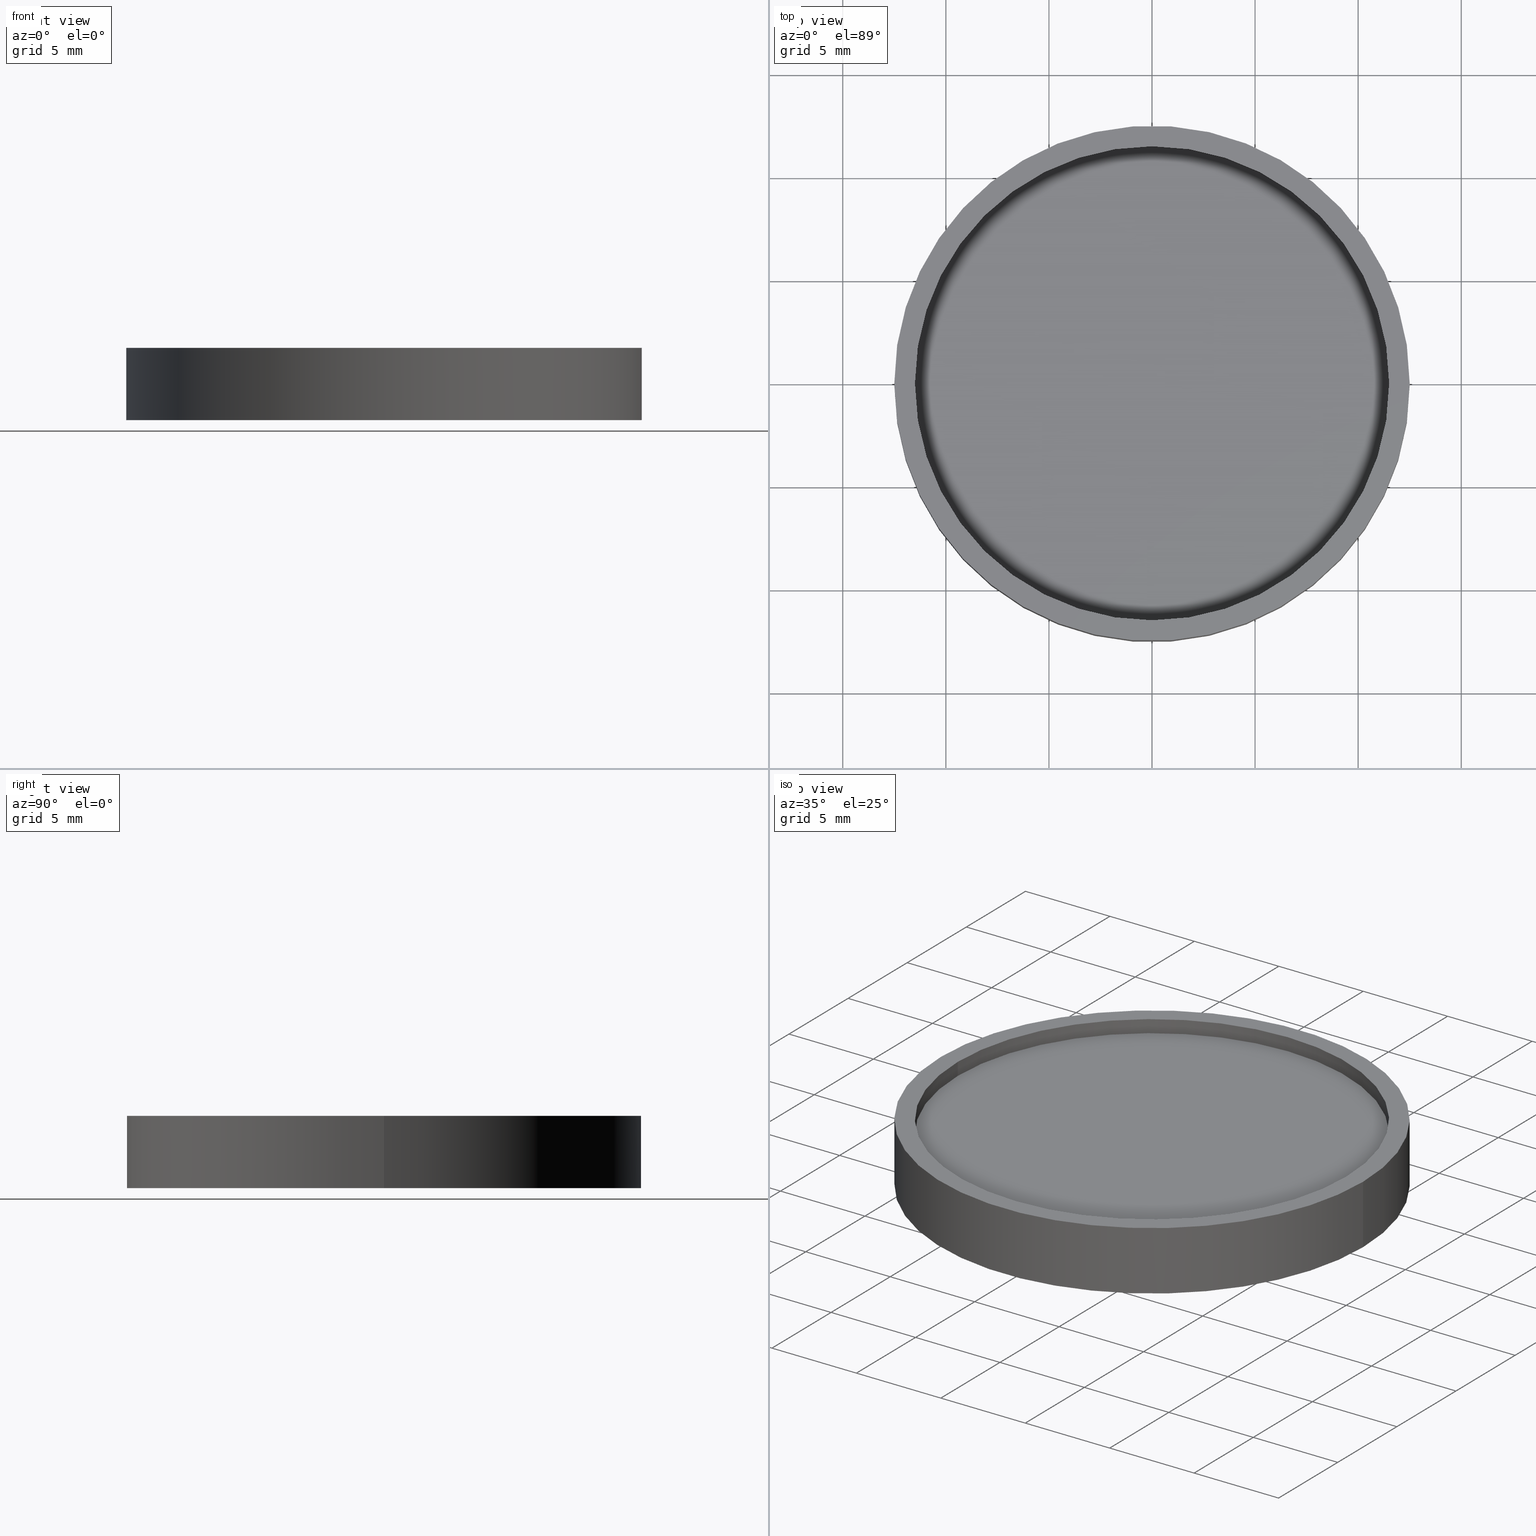
[diagram: canonical four-view strip — front | top / right | iso, engineering-drawing reading convention]
A machine part, canonical four-view strip (front | top / right | iso — engineering-drawing reading convention). The complete STEP part file that produces these views, byte-faithful:
ISO-10303-21;
HEADER;
FILE_DESCRIPTION (( 'STEP AP214' ),
    '1' );
FILE_NAME ('GNIF-065-605-D25.STEP',
    '2024-08-13T06:42:39',
    ( 'Windows User' ),
    ( 'P R C' ),
    'SwSTEP 2.0',
    'SolidWorks 2022',
    '' );
FILE_SCHEMA (( 'AUTOMOTIVE_DESIGN' ));
ENDSEC;

DATA;
#1 = SURFACE_SIDE_STYLE ('',( #387 ) ) ;
#2 = COLOUR_RGB ( '',0.2235294117647058654, 0.2235294117647058654, 0.2235294117647058654 ) ;
#3 = DIRECTION ( 'NONE',  ( -0.000000000000000000, -0.000000000000000000, -1.000000000000000000 ) ) ;
#4 = FACE_OUTER_BOUND ( 'NONE', #61, .T. ) ;
#5 = DIRECTION ( 'NONE',  ( -1.000000000000000000, 0.000000000000000000, 0.000000000000000000 ) ) ;
#6 = FILL_AREA_STYLE ('',( #37 ) ) ;
#7 = ADVANCED_BREP_SHAPE_REPRESENTATION ( 'GNIF-065-605-D25', ( #137, #70 ), #293 ) ;
#8 =( NAMED_UNIT ( * ) PLANE_ANGLE_UNIT ( ) SI_UNIT ( $, .RADIAN. ) );
#9 = UNCERTAINTY_MEASURE_WITH_UNIT (LENGTH_MEASURE( 1.000000000000000082E-05 ), #230, 'distance_accuracy_value', 'NONE');
#10 = FACE_OUTER_BOUND ( 'NONE', #189, .T. ) ;
#11 = MECHANICAL_DESIGN_GEOMETRIC_PRESENTATION_REPRESENTATION (  '', ( #197 ), #382 ) ;
#12 = DIRECTION ( 'NONE',  ( 0.000000000000000000, 0.000000000000000000, 1.000000000000000000 ) ) ;
#13 = VERTEX_POINT ( 'NONE', #147 ) ;
#14 = UNCERTAINTY_MEASURE_WITH_UNIT (LENGTH_MEASURE( 1.000000000000000082E-05 ), #385, 'distance_accuracy_value', 'NONE');
#15 = ADVANCED_FACE ( 'NONE', ( #118 ), #81, .T. ) ;
#16 = CARTESIAN_POINT ( 'NONE',  ( 0.000000000000000000, 0.000000000000000000, 0.000000000000000000 ) ) ;
#17 =( LENGTH_UNIT ( ) NAMED_UNIT ( * ) SI_UNIT ( .MILLI., .METRE. ) );
#18 = VECTOR ( 'NONE', #151, 1000.000000000000000 ) ;
#19 = FACE_OUTER_BOUND ( 'NONE', #419, .T. ) ;
#20 = LINE ( 'NONE', #152, #301 ) ;
#21 = ORIENTED_EDGE ( 'NONE', *, *, #354, .T. ) ;
#22 = SURFACE_SIDE_STYLE ('',( #55 ) ) ;
#23 = COLOUR_RGB ( '',0.2235294117647058654, 0.2235294117647058654, 0.2235294117647058654 ) ;
#24 = ORIENTED_EDGE ( 'NONE', *, *, #420, .T. ) ;
#25 = CARTESIAN_POINT ( 'NONE',  ( 0.000000000000000000, 0.000000000000000000, 2.750000000000000000 ) ) ;
#26 = VERTEX_POINT ( 'NONE', #280 ) ;
#27 = VERTEX_POINT ( 'NONE', #208 ) ;
#28 = FACE_OUTER_BOUND ( 'NONE', #220, .T. ) ;
#29 = CIRCLE ( 'NONE', #284, 12.50000000000000000 ) ;
#30 = VERTEX_POINT ( 'NONE', #242 ) ;
#31 = AXIS2_PLACEMENT_3D ( 'NONE', #392, #3, #196 ) ;
#32 = CIRCLE ( 'NONE', #241, 11.50000000000000000 ) ;
#33 = ADVANCED_FACE ( 'NONE', ( #10 ), #42, .F. ) ;
#34 = FILL_AREA_STYLE_COLOUR ( '', #391 ) ;
#35 = PRODUCT_CONTEXT ( 'NONE', #264, 'mechanical' ) ;
#36 =( GEOMETRIC_REPRESENTATION_CONTEXT ( 3 ) GLOBAL_UNCERTAINTY_ASSIGNED_CONTEXT ( ( #172 ) ) GLOBAL_UNIT_ASSIGNED_CONTEXT ( ( #205, #179, #238 ) ) REPRESENTATION_CONTEXT ( 'NONE', 'WORKASPACE' ) );
#37 = FILL_AREA_STYLE_COLOUR ( '', #50 ) ;
#38 = CIRCLE ( 'NONE', #371, 12.50000000000000000 ) ;
#39 = DIRECTION ( 'NONE',  ( 1.000000000000000000, 0.000000000000000000, 0.000000000000000000 ) ) ;
#40 = STYLED_ITEM ( 'NONE', ( #334 ), #318 ) ;
#41 = SURFACE_STYLE_FILL_AREA ( #336 ) ;
#42 = CONICAL_SURFACE ( 'NONE', #102, 11.50000000000000000, 0.7853981633974471688 ) ;
#43 = APPLICATION_PROTOCOL_DEFINITION ( 'draft international standard', 'automotive_design', 1998, #65 ) ;
#44 =( NAMED_UNIT ( * ) SI_UNIT ( $, .STERADIAN. ) SOLID_ANGLE_UNIT ( ) );
#45 = CARTESIAN_POINT ( 'NONE',  ( 0.000000000000000000, 0.000000000000000000, 2.750000000000000000 ) ) ;
#46 = EDGE_CURVE ( 'NONE', #123, #285, #210, .T. ) ;
#47 =( LENGTH_UNIT ( ) NAMED_UNIT ( * ) SI_UNIT ( .MILLI., .METRE. ) );
#48 = STYLED_ITEM ( 'NONE', ( #307 ), #7 ) ;
#49 = AXIS2_PLACEMENT_3D ( 'NONE', #124, #185, #66 ) ;
#50 = COLOUR_RGB ( '',0.2235294117647058654, 0.2235294117647058654, 0.2235294117647058654 ) ;
#51 = SURFACE_SIDE_STYLE ('',( #364 ) ) ;
#52 = DIRECTION ( 'NONE',  ( 1.000000000000000000, 0.000000000000000000, -0.000000000000000000 ) ) ;
#53 = EDGE_LOOP ( 'NONE', ( #257, #253 ) ) ;
#54 = MECHANICAL_DESIGN_GEOMETRIC_PRESENTATION_REPRESENTATION (  '', ( #236 ), #36 ) ;
#55 = SURFACE_STYLE_FILL_AREA ( #129 ) ;
#56 = ORIENTED_EDGE ( 'NONE', *, *, #278, .T. ) ;
#57 = DIRECTION ( 'NONE',  ( 0.000000000000000000, 0.000000000000000000, 1.000000000000000000 ) ) ;
#58 = FILL_AREA_STYLE_COLOUR ( '', #23 ) ;
#59 = STYLED_ITEM ( 'NONE', ( #239 ), #33 ) ;
#60 = PRODUCT ( 'GNIF-065-605-D25', 'GNIF-065-605-D25', '', ( #35 ) ) ;
#61 = EDGE_LOOP ( 'NONE', ( #357, #252, #417, #379 ) ) ;
#62 = ORIENTED_EDGE ( 'NONE', *, *, #178, .T. ) ;
#63 = FACE_OUTER_BOUND ( 'NONE', #409, .T. ) ;
#64 = ORIENTED_EDGE ( 'NONE', *, *, #76, .T. ) ;
#65 = APPLICATION_CONTEXT ( 'automotive_design' ) ;
#66 = DIRECTION ( 'NONE',  ( 1.000000000000000000, 0.000000000000000000, 0.000000000000000000 ) ) ;
#67 = SURFACE_STYLE_USAGE ( .BOTH. , #74 ) ;
#68 = CARTESIAN_POINT ( 'NONE',  ( 0.000000000000000000, 0.000000000000000000, 2.750000000000000000 ) ) ;
#69 =( NAMED_UNIT ( * ) SI_UNIT ( $, .STERADIAN. ) SOLID_ANGLE_UNIT ( ) );
#70 = AXIS2_PLACEMENT_3D ( 'NONE', #337, #331, #103 ) ;
#71 = MECHANICAL_DESIGN_GEOMETRIC_PRESENTATION_REPRESENTATION (  '', ( #120 ), #141 ) ;
#72 = COLOUR_RGB ( '',0.2235294117647058654, 0.2235294117647058654, 0.2235294117647058654 ) ;
#73 = PRODUCT_DEFINITION_SHAPE ( 'NONE', 'NONE',  #229 ) ;
#74 = SURFACE_SIDE_STYLE ('',( #299 ) ) ;
#75 = CIRCLE ( 'NONE', #314, 11.50000000000000000 ) ;
#76 = EDGE_CURVE ( 'NONE', #287, #226, #20, .T. ) ;
#77 = SURFACE_STYLE_USAGE ( .BOTH. , #305 ) ;
#78 = UNCERTAINTY_MEASURE_WITH_UNIT (LENGTH_MEASURE( 1.000000000000000082E-05 ), #88, 'distance_accuracy_value', 'NONE');
#79 = SURFACE_STYLE_USAGE ( .BOTH. , #51 ) ;
#80 = AXIS2_PLACEMENT_3D ( 'NONE', #45, #276, #52 ) ;
#81 = PLANE ( 'NONE',  #80 ) ;
#82 = CYLINDRICAL_SURFACE ( 'NONE', #396, 11.50000000000000000 ) ;
#83 = EDGE_CURVE ( 'NONE', #287, #27, #38, .T. ) ;
#84 = FACE_OUTER_BOUND ( 'NONE', #86, .T. ) ;
#85 = COLOUR_RGB ( '',0.2235294117647058654, 0.2235294117647058654, 0.2235294117647058654 ) ;
#86 = EDGE_LOOP ( 'NONE', ( #90, #374, #223, #251 ) ) ;
#87 = AXIS2_PLACEMENT_3D ( 'NONE', #347, #286, #222 ) ;
#88 =( LENGTH_UNIT ( ) NAMED_UNIT ( * ) SI_UNIT ( .MILLI., .METRE. ) );
#89 =( LENGTH_UNIT ( ) NAMED_UNIT ( * ) SI_UNIT ( .MILLI., .METRE. ) );
#90 = ORIENTED_EDGE ( 'NONE', *, *, #178, .F. ) ;
#91 = PRESENTATION_LAYER_ASSIGNMENT (  '', '', ( #197 ) ) ;
#92 = DIRECTION ( 'NONE',  ( 0.000000000000000000, 0.000000000000000000, -1.000000000000000000 ) ) ;
#93 = PLANE ( 'NONE',  #87 ) ;
#94 = ORIENTED_EDGE ( 'NONE', *, *, #354, .F. ) ;
#95 = VECTOR ( 'NONE', #341, 1000.000000000000000 ) ;
#96 = EDGE_LOOP ( 'NONE', ( #319, #381 ) ) ;
#97 = DIRECTION ( 'NONE',  ( 0.000000000000000000, 0.000000000000000000, -1.000000000000000000 ) ) ;
#98 = SURFACE_SIDE_STYLE ('',( #383 ) ) ;
#99 = ORIENTED_EDGE ( 'NONE', *, *, #213, .T. ) ;
#100 =( NAMED_UNIT ( * ) PLANE_ANGLE_UNIT ( ) SI_UNIT ( $, .RADIAN. ) );
#101 =( NAMED_UNIT ( * ) PLANE_ANGLE_UNIT ( ) SI_UNIT ( $, .RADIAN. ) );
#102 = AXIS2_PLACEMENT_3D ( 'NONE', #180, #315, #244 ) ;
#103 = DIRECTION ( 'NONE',  ( 1.000000000000000000, 0.000000000000000000, 0.000000000000000000 ) ) ;
#104 = DIRECTION ( 'NONE',  ( 0.000000000000000000, 0.000000000000000000, -1.000000000000000000 ) ) ;
#105 = FILL_AREA_STYLE_COLOUR ( '', #398 ) ;
#106 = AXIS2_PLACEMENT_3D ( 'NONE', #183, #224, #193 ) ;
#107 = STYLED_ITEM ( 'NONE', ( #203 ), #234 ) ;
#108 = DIRECTION ( 'NONE',  ( 1.000000000000000000, 0.000000000000000000, 0.000000000000000000 ) ) ;
#109 = EDGE_CURVE ( 'NONE', #30, #164, #32, .T. ) ;
#110 = CIRCLE ( 'NONE', #260, 12.25000000000000711 ) ;
#111 = DIRECTION ( 'NONE',  ( 1.000000000000000000, 0.000000000000000000, 0.000000000000000000 ) ) ;
#112 = UNCERTAINTY_MEASURE_WITH_UNIT (LENGTH_MEASURE( 1.000000000000000082E-05 ), #47, 'distance_accuracy_value', 'NONE');
#113 = ADVANCED_FACE ( 'NONE', ( #84 ), #212, .F. ) ;
#114 = DIRECTION ( 'NONE',  ( 0.000000000000000000, 0.000000000000000000, -1.000000000000000000 ) ) ;
#115 = UNCERTAINTY_MEASURE_WITH_UNIT (LENGTH_MEASURE( 1.000000000000000082E-05 ), #323, 'distance_accuracy_value', 'NONE');
#116 = CARTESIAN_POINT ( 'NONE',  ( 0.000000000000000000, 0.000000000000000000, 3.500000000000000000 ) ) ;
#117 = SURFACE_SIDE_STYLE ('',( #275 ) ) ;
#118 = FACE_OUTER_BOUND ( 'NONE', #290, .T. ) ;
#119 = SURFACE_SIDE_STYLE ('',( #340 ) ) ;
#120 = STYLED_ITEM ( 'NONE', ( #265 ), #153 ) ;
#121 = PRODUCT_RELATED_PRODUCT_CATEGORY ( 'part', '', ( #60 ) ) ;
#122 = ORIENTED_EDGE ( 'NONE', *, *, #365, .F. ) ;
#123 = VERTEX_POINT ( 'NONE', #320 ) ;
#124 = CARTESIAN_POINT ( 'NONE',  ( 0.000000000000000000, 0.000000000000000000, 3.500000000000000000 ) ) ;
#125 = CARTESIAN_POINT ( 'NONE',  ( 0.000000000000000000, 0.000000000000000000, 2.750000000000000000 ) ) ;
#126 = ORIENTED_EDGE ( 'NONE', *, *, #159, .T. ) ;
#127 = FILL_AREA_STYLE_COLOUR ( '', #254 ) ;
#128 = ADVANCED_FACE ( 'NONE', ( #329, #186 ), #93, .T. ) ;
#129 = FILL_AREA_STYLE ('',( #34 ) ) ;
#130 = CIRCLE ( 'NONE', #267, 11.50000000000000000 ) ;
#131 = DIRECTION ( 'NONE',  ( 1.000000000000000000, 0.000000000000000000, 0.000000000000000000 ) ) ;
#132 =( NAMED_UNIT ( * ) PLANE_ANGLE_UNIT ( ) SI_UNIT ( $, .RADIAN. ) );
#133 = ORIENTED_EDGE ( 'NONE', *, *, #259, .F. ) ;
#134 = COLOUR_RGB ( '',0.2235294117647058654, 0.2235294117647058654, 0.2235294117647058654 ) ;
#135 = LINE ( 'NONE', #199, #344 ) ;
#136 = SURFACE_STYLE_USAGE ( .BOTH. , #1 ) ;
#137 = MANIFOLD_SOLID_BREP ( '����1', #187 ) ;
#138 = CARTESIAN_POINT ( 'NONE',  ( -11.50000000000000000, 1.408343819019456176E-15, 2.750000000000000000 ) ) ;
#139 = DIRECTION ( 'NONE',  ( -0.000000000000000000, -0.000000000000000000, -1.000000000000000000 ) ) ;
#140 = DIRECTION ( 'NONE',  ( -1.000000000000000000, 0.000000000000000000, 0.000000000000000000 ) ) ;
#141 =( GEOMETRIC_REPRESENTATION_CONTEXT ( 3 ) GLOBAL_UNCERTAINTY_ASSIGNED_CONTEXT ( ( #9 ) ) GLOBAL_UNIT_ASSIGNED_CONTEXT ( ( #230, #101, #360 ) ) REPRESENTATION_CONTEXT ( 'NONE', 'WORKASPACE' ) );
#142 = PRESENTATION_LAYER_ASSIGNMENT (  '', '', ( #330 ) ) ;
#143 = PRESENTATION_STYLE_ASSIGNMENT (( #79 ) ) ;
#144 = CARTESIAN_POINT ( 'NONE',  ( -11.50000000000000000, 0.000000000000000000, 0.7500000000000093259 ) ) ;
#145 = SHAPE_DEFINITION_REPRESENTATION ( #73, #7 ) ;
#146 = CARTESIAN_POINT ( 'NONE',  ( -12.25000000000000711, 0.000000000000000000, 0.000000000000000000 ) ) ;
#147 = CARTESIAN_POINT ( 'NONE',  ( 12.25000000000000711, 1.500192328955508523E-15, 0.000000000000000000 ) ) ;
#148 = COLOUR_RGB ( '',0.2235294117647058654, 0.2235294117647058654, 0.2235294117647058654 ) ;
#149 = CARTESIAN_POINT ( 'NONE',  ( 11.50000000000000000, 0.000000000000000000, 2.750000000000000000 ) ) ;
#150 = UNCERTAINTY_MEASURE_WITH_UNIT (LENGTH_MEASURE( 1.000000000000000082E-05 ), #89, 'distance_accuracy_value', 'NONE');
#151 = DIRECTION ( 'NONE',  ( -0.000000000000000000, -0.000000000000000000, -1.000000000000000000 ) ) ;
#152 = CARTESIAN_POINT ( 'NONE',  ( -12.50000000000000000, 0.000000000000000000, 3.500000000000000000 ) ) ;
#153 = ADVANCED_FACE ( 'NONE', ( #28 ), #414, .T. ) ;
#154 = ORIENTED_EDGE ( 'NONE', *, *, #195, .F. ) ;
#155 =( GEOMETRIC_REPRESENTATION_CONTEXT ( 3 ) GLOBAL_UNCERTAINTY_ASSIGNED_CONTEXT ( ( #335 ) ) GLOBAL_UNIT_ASSIGNED_CONTEXT ( ( #165, #100, #191 ) ) REPRESENTATION_CONTEXT ( 'NONE', 'WORKASPACE' ) );
#156 = ORIENTED_EDGE ( 'NONE', *, *, #46, .F. ) ;
#157 = FILL_AREA_STYLE ('',( #58 ) ) ;
#158 = EDGE_LOOP ( 'NONE', ( #162, #384, #321, #154 ) ) ;
#159 = EDGE_CURVE ( 'NONE', #26, #13, #135, .T. ) ;
#160 = PLANE ( 'NONE',  #266 ) ;
#161 =( NAMED_UNIT ( * ) PLANE_ANGLE_UNIT ( ) SI_UNIT ( $, .RADIAN. ) );
#162 = ORIENTED_EDGE ( 'NONE', *, *, #159, .F. ) ;
#163 = CONICAL_SURFACE ( 'NONE', #359, 11.50000000000000000, 0.7853981633974471688 ) ;
#164 = VERTEX_POINT ( 'NONE', #261 ) ;
#165 =( LENGTH_UNIT ( ) NAMED_UNIT ( * ) SI_UNIT ( .MILLI., .METRE. ) );
#166 = LINE ( 'NONE', #138, #214 ) ;
#167 = MECHANICAL_DESIGN_GEOMETRIC_PRESENTATION_REPRESENTATION (  '', ( #59 ), #249 ) ;
#168 = CYLINDRICAL_SURFACE ( 'NONE', #271, 12.50000000000000000 ) ;
#169 = DIRECTION ( 'NONE',  ( 0.000000000000000000, 0.000000000000000000, 1.000000000000000000 ) ) ;
#170 =( GEOMETRIC_REPRESENTATION_CONTEXT ( 3 ) GLOBAL_UNCERTAINTY_ASSIGNED_CONTEXT ( ( #14 ) ) GLOBAL_UNIT_ASSIGNED_CONTEXT ( ( #385, #322, #221 ) ) REPRESENTATION_CONTEXT ( 'NONE', 'WORKASPACE' ) );
#171 = CARTESIAN_POINT ( 'NONE',  ( 0.000000000000000000, 0.000000000000000000, 0.000000000000000000 ) ) ;
#172 = UNCERTAINTY_MEASURE_WITH_UNIT (LENGTH_MEASURE( 1.000000000000000082E-05 ), #205, 'distance_accuracy_value', 'NONE');
#173 = SURFACE_SIDE_STYLE ('',( #41 ) ) ;
#174 = FILL_AREA_STYLE_COLOUR ( '', #134 ) ;
#175 = PRESENTATION_STYLE_ASSIGNMENT (( #308 ) ) ;
#176 = AXIS2_PLACEMENT_3D ( 'NONE', #68, #169, #108 ) ;
#177 = PRESENTATION_STYLE_ASSIGNMENT (( #306 ) ) ;
#178 = EDGE_CURVE ( 'NONE', #345, #164, #166, .T. ) ;
#179 =( NAMED_UNIT ( * ) PLANE_ANGLE_UNIT ( ) SI_UNIT ( $, .RADIAN. ) );
#180 = CARTESIAN_POINT ( 'NONE',  ( 0.000000000000000000, 0.000000000000000000, 0.7500000000000093259 ) ) ;
#181 = PRESENTATION_LAYER_ASSIGNMENT (  '', '', ( #236 ) ) ;
#182 = EDGE_LOOP ( 'NONE', ( #56, #297 ) ) ;
#183 = CARTESIAN_POINT ( 'NONE',  ( 0.000000000000000000, 0.000000000000000000, 3.500000000000000000 ) ) ;
#184 = ORIENTED_EDGE ( 'NONE', *, *, #295, .T. ) ;
#185 = DIRECTION ( 'NONE',  ( 0.000000000000000000, 0.000000000000000000, 1.000000000000000000 ) ) ;
#186 = FACE_OUTER_BOUND ( 'NONE', #53, .T. ) ;
#187 = CLOSED_SHELL ( 'NONE', ( #33, #318, #234, #153, #128, #245, #113, #15, #346, #303 ) ) ;
#188 = PRESENTATION_LAYER_ASSIGNMENT (  '', '', ( #232 ) ) ;
#189 = EDGE_LOOP ( 'NONE', ( #192, #126, #355, #156 ) ) ;
#190 = CARTESIAN_POINT ( 'NONE',  ( 0.000000000000000000, 0.000000000000000000, 0.000000000000000000 ) ) ;
#191 =( NAMED_UNIT ( * ) SI_UNIT ( $, .STERADIAN. ) SOLID_ANGLE_UNIT ( ) );
#192 = ORIENTED_EDGE ( 'NONE', *, *, #201, .F. ) ;
#193 = DIRECTION ( 'NONE',  ( 1.000000000000000000, 0.000000000000000000, 0.000000000000000000 ) ) ;
#194 =( NAMED_UNIT ( * ) PLANE_ANGLE_UNIT ( ) SI_UNIT ( $, .RADIAN. ) );
#195 = EDGE_CURVE ( 'NONE', #13, #285, #296, .T. ) ;
#196 = DIRECTION ( 'NONE',  ( -1.000000000000000000, 0.000000000000000000, 0.000000000000000000 ) ) ;
#197 = STYLED_ITEM ( 'NONE', ( #143 ), #245 ) ;
#198 =( LENGTH_UNIT ( ) NAMED_UNIT ( * ) SI_UNIT ( .MILLI., .METRE. ) );
#199 = CARTESIAN_POINT ( 'NONE',  ( 11.50000000000000000, 1.408343819019456176E-15, 0.7500000000000093259 ) ) ;
#200 = MECHANICAL_DESIGN_GEOMETRIC_PRESENTATION_REPRESENTATION (  '', ( #48 ), #416 ) ;
#201 = EDGE_CURVE ( 'NONE', #26, #123, #130, .T. ) ;
#202 = PRESENTATION_LAYER_ASSIGNMENT (  '', '', ( #403 ) ) ;
#203 = PRESENTATION_STYLE_ASSIGNMENT (( #67 ) ) ;
#204 = AXIS2_PLACEMENT_3D ( 'NONE', #16, #211, #309 ) ;
#205 =( LENGTH_UNIT ( ) NAMED_UNIT ( * ) SI_UNIT ( .MILLI., .METRE. ) );
#206 =( GEOMETRIC_REPRESENTATION_CONTEXT ( 3 ) GLOBAL_UNCERTAINTY_ASSIGNED_CONTEXT ( ( #115 ) ) GLOBAL_UNIT_ASSIGNED_CONTEXT ( ( #323, #161, #225 ) ) REPRESENTATION_CONTEXT ( 'NONE', 'WORKASPACE' ) );
#207 = CARTESIAN_POINT ( 'NONE',  ( 0.000000000000000000, 0.000000000000000000, 0.7500000000000093259 ) ) ;
#208 = CARTESIAN_POINT ( 'NONE',  ( 12.50000000000000000, 1.530808498934191521E-15, 3.500000000000000000 ) ) ;
#209 = FACE_OUTER_BOUND ( 'NONE', #158, .T. ) ;
#210 = LINE ( 'NONE', #144, #95 ) ;
#211 = DIRECTION ( 'NONE',  ( 0.000000000000000000, 0.000000000000000000, 1.000000000000000000 ) ) ;
#212 = CYLINDRICAL_SURFACE ( 'NONE', #277, 11.50000000000000000 ) ;
#213 = EDGE_CURVE ( 'NONE', #345, #350, #418, .T. ) ;
#214 = VECTOR ( 'NONE', #233, 1000.000000000000000 ) ;
#215 = SURFACE_STYLE_USAGE ( .BOTH. , #119 ) ;
#216 = ORIENTED_EDGE ( 'NONE', *, *, #83, .F. ) ;
#217 = EDGE_LOOP ( 'NONE', ( #94, #122 ) ) ;
#218 = DIRECTION ( 'NONE',  ( -1.000000000000000000, 0.000000000000000000, -0.000000000000000000 ) ) ;
#219 = SURFACE_STYLE_USAGE ( .BOTH. , #22 ) ;
#220 = EDGE_LOOP ( 'NONE', ( #412, #216, #64, #21 ) ) ;
#221 =( NAMED_UNIT ( * ) SI_UNIT ( $, .STERADIAN. ) SOLID_ANGLE_UNIT ( ) );
#222 = DIRECTION ( 'NONE',  ( 1.000000000000000000, 0.000000000000000000, -0.000000000000000000 ) ) ;
#223 = ORIENTED_EDGE ( 'NONE', *, *, #259, .T. ) ;
#224 = DIRECTION ( 'NONE',  ( 0.000000000000000000, 0.000000000000000000, 1.000000000000000000 ) ) ;
#225 =( NAMED_UNIT ( * ) SI_UNIT ( $, .STERADIAN. ) SOLID_ANGLE_UNIT ( ) );
#226 = VERTEX_POINT ( 'NONE', #333 ) ;
#227 = DIRECTION ( 'NONE',  ( 1.000000000000000000, 0.000000000000000000, 0.000000000000000000 ) ) ;
#228 =( NAMED_UNIT ( * ) SI_UNIT ( $, .STERADIAN. ) SOLID_ANGLE_UNIT ( ) );
#229 = PRODUCT_DEFINITION ( 'δ֪', '', #395, #313 ) ;
#230 =( LENGTH_UNIT ( ) NAMED_UNIT ( * ) SI_UNIT ( .MILLI., .METRE. ) );
#231 = AXIS2_PLACEMENT_3D ( 'NONE', #190, #57, #227 ) ;
#232 = STYLED_ITEM ( 'NONE', ( #177 ), #113 ) ;
#233 = DIRECTION ( 'NONE',  ( -0.000000000000000000, -0.000000000000000000, 1.000000000000000000 ) ) ;
#234 = ADVANCED_FACE ( 'NONE', ( #4 ), #168, .T. ) ;
#235 = FILL_AREA_STYLE ('',( #105 ) ) ;
#236 = STYLED_ITEM ( 'NONE', ( #175 ), #303 ) ;
#237 = FILL_AREA_STYLE ('',( #243 ) ) ;
#238 =( NAMED_UNIT ( * ) SI_UNIT ( $, .STERADIAN. ) SOLID_ANGLE_UNIT ( ) );
#239 = PRESENTATION_STYLE_ASSIGNMENT (( #215 ) ) ;
#240 =( NAMED_UNIT ( * ) SI_UNIT ( $, .STERADIAN. ) SOLID_ANGLE_UNIT ( ) );
#241 = AXIS2_PLACEMENT_3D ( 'NONE', #116, #380, #373 ) ;
#242 = CARTESIAN_POINT ( 'NONE',  ( 11.50000000000000000, 0.000000000000000000, 3.500000000000000000 ) ) ;
#243 = FILL_AREA_STYLE_COLOUR ( '', #85 ) ;
#244 = DIRECTION ( 'NONE',  ( -1.000000000000000000, 0.000000000000000000, 0.000000000000000000 ) ) ;
#245 = ADVANCED_FACE ( 'NONE', ( #268, #263 ), #393, .F. ) ;
#246 =( NAMED_UNIT ( * ) SI_UNIT ( $, .STERADIAN. ) SOLID_ANGLE_UNIT ( ) );
#247 = CIRCLE ( 'NONE', #343, 11.50000000000000000 ) ;
#248 =( GEOMETRIC_REPRESENTATION_CONTEXT ( 3 ) GLOBAL_UNCERTAINTY_ASSIGNED_CONTEXT ( ( #370 ) ) GLOBAL_UNIT_ASSIGNED_CONTEXT ( ( #198, #363, #69 ) ) REPRESENTATION_CONTEXT ( 'NONE', 'WORKASPACE' ) );
#249 =( GEOMETRIC_REPRESENTATION_CONTEXT ( 3 ) GLOBAL_UNCERTAINTY_ASSIGNED_CONTEXT ( ( #150 ) ) GLOBAL_UNIT_ASSIGNED_CONTEXT ( ( #89, #310, #44 ) ) REPRESENTATION_CONTEXT ( 'NONE', 'WORKASPACE' ) );
#250 = DIRECTION ( 'NONE',  ( 1.000000000000000000, 0.000000000000000000, 0.000000000000000000 ) ) ;
#251 = ORIENTED_EDGE ( 'NONE', *, *, #109, .T. ) ;
#252 = ORIENTED_EDGE ( 'NONE', *, *, #269, .T. ) ;
#253 = ORIENTED_EDGE ( 'NONE', *, *, #394, .T. ) ;
#254 = COLOUR_RGB ( '',1.000000000000000000, 1.000000000000000000, 1.000000000000000000 ) ;
#255 = FILL_AREA_STYLE ('',( #127 ) ) ;
#256 = PRESENTATION_LAYER_ASSIGNMENT (  '', '', ( #107 ) ) ;
#257 = ORIENTED_EDGE ( 'NONE', *, *, #83, .T. ) ;
#258 = CARTESIAN_POINT ( 'NONE',  ( -11.50000000000000000, 1.408343819019456176E-15, 2.750000000000000000 ) ) ;
#259 = EDGE_CURVE ( 'NONE', #350, #30, #272, .T. ) ;
#260 = AXIS2_PLACEMENT_3D ( 'NONE', #171, #12, #281 ) ;
#261 = CARTESIAN_POINT ( 'NONE',  ( -11.50000000000000000, 1.408343819019456176E-15, 3.500000000000000000 ) ) ;
#262 = CARTESIAN_POINT ( 'NONE',  ( 0.000000000000000000, 0.000000000000000000, 0.000000000000000000 ) ) ;
#263 = FACE_OUTER_BOUND ( 'NONE', #217, .T. ) ;
#264 = APPLICATION_CONTEXT ( 'automotive_design' ) ;
#265 = PRESENTATION_STYLE_ASSIGNMENT (( #326 ) ) ;
#266 = AXIS2_PLACEMENT_3D ( 'NONE', #389, #92, #218 ) ;
#267 = AXIS2_PLACEMENT_3D ( 'NONE', #362, #104, #5 ) ;
#268 = FACE_BOUND ( 'NONE', #182, .T. ) ;
#269 = EDGE_CURVE ( 'NONE', #27, #324, #405, .T. ) ;
#270 =( LENGTH_UNIT ( ) NAMED_UNIT ( * ) SI_UNIT ( .MILLI., .METRE. ) );
#271 = AXIS2_PLACEMENT_3D ( 'NONE', #302, #139, #140 ) ;
#272 = LINE ( 'NONE', #149, #367 ) ;
#273 = UNCERTAINTY_MEASURE_WITH_UNIT (LENGTH_MEASURE( 1.000000000000000082E-05 ), #270, 'distance_accuracy_value', 'NONE');
#274 = DIRECTION ( 'NONE',  ( 0.000000000000000000, 0.000000000000000000, 1.000000000000000000 ) ) ;
#275 = SURFACE_STYLE_FILL_AREA ( #279 ) ;
#276 = DIRECTION ( 'NONE',  ( 0.000000000000000000, 0.000000000000000000, 1.000000000000000000 ) ) ;
#277 = AXIS2_PLACEMENT_3D ( 'NONE', #125, #317, #390 ) ;
#278 = EDGE_CURVE ( 'NONE', #285, #13, #110, .T. ) ;
#279 = FILL_AREA_STYLE ('',( #174 ) ) ;
#280 = CARTESIAN_POINT ( 'NONE',  ( 11.50000000000000000, 1.454268073987482448E-15, 0.7500000000000000000 ) ) ;
#281 = DIRECTION ( 'NONE',  ( 1.000000000000000000, 0.000000000000000000, 0.000000000000000000 ) ) ;
#282 = CARTESIAN_POINT ( 'NONE',  ( 11.50000000000000000, 0.000000000000000000, 2.750000000000000000 ) ) ;
#283 = DIRECTION ( 'NONE',  ( -0.000000000000000000, -0.000000000000000000, -1.000000000000000000 ) ) ;
#284 = AXIS2_PLACEMENT_3D ( 'NONE', #413, #349, #358 ) ;
#285 = VERTEX_POINT ( 'NONE', #146 ) ;
#286 = DIRECTION ( 'NONE',  ( 0.000000000000000000, 0.000000000000000000, 1.000000000000000000 ) ) ;
#287 = VERTEX_POINT ( 'NONE', #372 ) ;
#288 = CARTESIAN_POINT ( 'NONE',  ( 12.50000000000000000, 1.530808498934191521E-15, 0.000000000000000000 ) ) ;
#289 = SURFACE_STYLE_FILL_AREA ( #157 ) ;
#290 = EDGE_LOOP ( 'NONE', ( #184, #99 ) ) ;
#291 = DIRECTION ( 'NONE',  ( -1.000000000000000000, 0.000000000000000000, 0.000000000000000000 ) ) ;
#292 = ORIENTED_EDGE ( 'NONE', *, *, #213, .F. ) ;
#293 =( GEOMETRIC_REPRESENTATION_CONTEXT ( 3 ) GLOBAL_UNCERTAINTY_ASSIGNED_CONTEXT ( ( #78 ) ) GLOBAL_UNIT_ASSIGNED_CONTEXT ( ( #88, #406, #351 ) ) REPRESENTATION_CONTEXT ( 'NONE', 'WORKASPACE' ) );
#294 = CIRCLE ( 'NONE', #106, 12.50000000000000000 ) ;
#295 = EDGE_CURVE ( 'NONE', #350, #345, #75, .T. ) ;
#296 = CIRCLE ( 'NONE', #328, 12.25000000000000711 ) ;
#297 = ORIENTED_EDGE ( 'NONE', *, *, #195, .T. ) ;
#298 = PRESENTATION_STYLE_ASSIGNMENT (( #219 ) ) ;
#299 = SURFACE_STYLE_FILL_AREA ( #6 ) ;
#300 = PRESENTATION_LAYER_ASSIGNMENT (  '', '', ( #59 ) ) ;
#301 = VECTOR ( 'NONE', #283, 1000.000000000000000 ) ;
#302 = CARTESIAN_POINT ( 'NONE',  ( 0.000000000000000000, 0.000000000000000000, 3.500000000000000000 ) ) ;
#303 = ADVANCED_FACE ( 'NONE', ( #209 ), #163, .F. ) ;
#304 = CIRCLE ( 'NONE', #231, 12.50000000000000000 ) ;
#305 = SURFACE_SIDE_STYLE ('',( #368 ) ) ;
#306 = SURFACE_STYLE_USAGE ( .BOTH. , #173 ) ;
#307 = PRESENTATION_STYLE_ASSIGNMENT (( #136 ) ) ;
#308 = SURFACE_STYLE_USAGE ( .BOTH. , #117 ) ;
#309 = DIRECTION ( 'NONE',  ( 1.000000000000000000, 0.000000000000000000, -0.000000000000000000 ) ) ;
#310 =( NAMED_UNIT ( * ) PLANE_ANGLE_UNIT ( ) SI_UNIT ( $, .RADIAN. ) );
#311 = PRESENTATION_LAYER_ASSIGNMENT (  '', '', ( #48 ) ) ;
#312 = MECHANICAL_DESIGN_GEOMETRIC_PRESENTATION_REPRESENTATION (  '', ( #403 ), #155 ) ;
#313 = PRODUCT_DEFINITION_CONTEXT ( 'detailed design', #65, 'design' ) ;
#314 = AXIS2_PLACEMENT_3D ( 'NONE', #397, #400, #111 ) ;
#315 = DIRECTION ( 'NONE',  ( 0.000000000000000000, 0.000000000000000000, -1.000000000000000000 ) ) ;
#316 = DIRECTION ( 'NONE',  ( -0.000000000000000000, -0.000000000000000000, 1.000000000000000000 ) ) ;
#317 = DIRECTION ( 'NONE',  ( -0.000000000000000000, -0.000000000000000000, 1.000000000000000000 ) ) ;
#318 = ADVANCED_FACE ( 'NONE', ( #19 ), #82, .F. ) ;
#319 = ORIENTED_EDGE ( 'NONE', *, *, #109, .F. ) ;
#320 = CARTESIAN_POINT ( 'NONE',  ( -11.50000000000000000, 0.000000000000000000, 0.7500000000000000000 ) ) ;
#321 = ORIENTED_EDGE ( 'NONE', *, *, #46, .T. ) ;
#322 =( NAMED_UNIT ( * ) PLANE_ANGLE_UNIT ( ) SI_UNIT ( $, .RADIAN. ) );
#323 =( LENGTH_UNIT ( ) NAMED_UNIT ( * ) SI_UNIT ( .MILLI., .METRE. ) );
#324 = VERTEX_POINT ( 'NONE', #288 ) ;
#325 = CARTESIAN_POINT ( 'NONE',  ( 0.000000000000000000, 0.000000000000000000, 0.7500000000000000000 ) ) ;
#326 = SURFACE_STYLE_USAGE ( .BOTH. , #353 ) ;
#327 = CIRCLE ( 'NONE', #49, 11.50000000000000000 ) ;
#328 = AXIS2_PLACEMENT_3D ( 'NONE', #262, #332, #39 ) ;
#329 = FACE_BOUND ( 'NONE', #96, .T. ) ;
#330 = STYLED_ITEM ( 'NONE', ( #298 ), #137 ) ;
#331 = DIRECTION ( 'NONE',  ( 0.000000000000000000, 0.000000000000000000, 1.000000000000000000 ) ) ;
#332 = DIRECTION ( 'NONE',  ( 0.000000000000000000, 0.000000000000000000, 1.000000000000000000 ) ) ;
#333 = CARTESIAN_POINT ( 'NONE',  ( -12.50000000000000000, 0.000000000000000000, 0.000000000000000000 ) ) ;
#334 = PRESENTATION_STYLE_ASSIGNMENT (( #77 ) ) ;
#335 = UNCERTAINTY_MEASURE_WITH_UNIT (LENGTH_MEASURE( 1.000000000000000082E-05 ), #165, 'distance_accuracy_value', 'NONE');
#336 = FILL_AREA_STYLE ('',( #342 ) ) ;
#337 = CARTESIAN_POINT ( 'NONE',  ( 0.000000000000000000, 0.000000000000000000, 0.000000000000000000 ) ) ;
#338 = MECHANICAL_DESIGN_GEOMETRIC_PRESENTATION_REPRESENTATION (  '', ( #232 ), #352 ) ;
#339 = DIRECTION ( 'NONE',  ( -0.000000000000000000, -0.000000000000000000, 1.000000000000000000 ) ) ;
#340 = SURFACE_STYLE_FILL_AREA ( #402 ) ;
#341 = DIRECTION ( 'NONE',  ( -0.7071067811865467956, 0.000000000000000000, -0.7071067811865483499 ) ) ;
#342 = FILL_AREA_STYLE_COLOUR ( '', #72 ) ;
#343 = AXIS2_PLACEMENT_3D ( 'NONE', #325, #97, #291 ) ;
#344 = VECTOR ( 'NONE', #366, 1000.000000000000000 ) ;
#345 = VERTEX_POINT ( 'NONE', #258 ) ;
#346 = ADVANCED_FACE ( 'NONE', ( #63 ), #160, .T. ) ;
#347 = CARTESIAN_POINT ( 'NONE',  ( 0.000000000000000000, 0.000000000000000000, 3.500000000000000000 ) ) ;
#348 = ORIENTED_EDGE ( 'NONE', *, *, #201, .T. ) ;
#349 = DIRECTION ( 'NONE',  ( 0.000000000000000000, 0.000000000000000000, 1.000000000000000000 ) ) ;
#350 = VERTEX_POINT ( 'NONE', #282 ) ;
#351 =( NAMED_UNIT ( * ) SI_UNIT ( $, .STERADIAN. ) SOLID_ANGLE_UNIT ( ) );
#352 =( GEOMETRIC_REPRESENTATION_CONTEXT ( 3 ) GLOBAL_UNCERTAINTY_ASSIGNED_CONTEXT ( ( #401 ) ) GLOBAL_UNIT_ASSIGNED_CONTEXT ( ( #17, #132, #228 ) ) REPRESENTATION_CONTEXT ( 'NONE', 'WORKASPACE' ) );
#353 = SURFACE_SIDE_STYLE ('',( #289 ) ) ;
#354 = EDGE_CURVE ( 'NONE', #226, #324, #304, .T. ) ;
#355 = ORIENTED_EDGE ( 'NONE', *, *, #278, .F. ) ;
#356 = PRESENTATION_STYLE_ASSIGNMENT (( #386 ) ) ;
#357 = ORIENTED_EDGE ( 'NONE', *, *, #394, .F. ) ;
#358 = DIRECTION ( 'NONE',  ( 1.000000000000000000, 0.000000000000000000, 0.000000000000000000 ) ) ;
#359 = AXIS2_PLACEMENT_3D ( 'NONE', #207, #114, #369 ) ;
#360 =( NAMED_UNIT ( * ) SI_UNIT ( $, .STERADIAN. ) SOLID_ANGLE_UNIT ( ) );
#361 = PRESENTATION_LAYER_ASSIGNMENT (  '', '', ( #120 ) ) ;
#362 = CARTESIAN_POINT ( 'NONE',  ( 0.000000000000000000, 0.000000000000000000, 0.7500000000000000000 ) ) ;
#363 =( NAMED_UNIT ( * ) PLANE_ANGLE_UNIT ( ) SI_UNIT ( $, .RADIAN. ) );
#364 = SURFACE_STYLE_FILL_AREA ( #235 ) ;
#365 = EDGE_CURVE ( 'NONE', #324, #226, #29, .T. ) ;
#366 = DIRECTION ( 'NONE',  ( 0.7071067811865467956, 8.659560562354925463E-17, -0.7071067811865483499 ) ) ;
#367 = VECTOR ( 'NONE', #339, 1000.000000000000000 ) ;
#368 = SURFACE_STYLE_FILL_AREA ( #237 ) ;
#369 = DIRECTION ( 'NONE',  ( -1.000000000000000000, 0.000000000000000000, 0.000000000000000000 ) ) ;
#370 = UNCERTAINTY_MEASURE_WITH_UNIT (LENGTH_MEASURE( 1.000000000000000082E-05 ), #198, 'distance_accuracy_value', 'NONE');
#371 = AXIS2_PLACEMENT_3D ( 'NONE', #404, #274, #250 ) ;
#372 = CARTESIAN_POINT ( 'NONE',  ( -12.50000000000000000, 0.000000000000000000, 3.500000000000000000 ) ) ;
#373 = DIRECTION ( 'NONE',  ( 1.000000000000000000, 0.000000000000000000, 0.000000000000000000 ) ) ;
#374 = ORIENTED_EDGE ( 'NONE', *, *, #295, .F. ) ;
#375 = MECHANICAL_DESIGN_GEOMETRIC_PRESENTATION_REPRESENTATION (  '', ( #40 ), #170 ) ;
#376 = EDGE_CURVE ( 'NONE', #164, #30, #327, .T. ) ;
#377 = MECHANICAL_DESIGN_GEOMETRIC_PRESENTATION_REPRESENTATION (  '', ( #107 ), #248 ) ;
#378 = MECHANICAL_DESIGN_GEOMETRIC_PRESENTATION_REPRESENTATION (  '', ( #330 ), #206 ) ;
#379 = ORIENTED_EDGE ( 'NONE', *, *, #76, .F. ) ;
#380 = DIRECTION ( 'NONE',  ( 0.000000000000000000, 0.000000000000000000, 1.000000000000000000 ) ) ;
#381 = ORIENTED_EDGE ( 'NONE', *, *, #376, .F. ) ;
#382 =( GEOMETRIC_REPRESENTATION_CONTEXT ( 3 ) GLOBAL_UNCERTAINTY_ASSIGNED_CONTEXT ( ( #112 ) ) GLOBAL_UNIT_ASSIGNED_CONTEXT ( ( #47, #8, #246 ) ) REPRESENTATION_CONTEXT ( 'NONE', 'WORKASPACE' ) );
#383 = SURFACE_STYLE_FILL_AREA ( #388 ) ;
#384 = ORIENTED_EDGE ( 'NONE', *, *, #420, .F. ) ;
#385 =( LENGTH_UNIT ( ) NAMED_UNIT ( * ) SI_UNIT ( .MILLI., .METRE. ) );
#386 = SURFACE_STYLE_USAGE ( .BOTH. , #98 ) ;
#387 = SURFACE_STYLE_FILL_AREA ( #255 ) ;
#388 = FILL_AREA_STYLE ('',( #411 ) ) ;
#389 = CARTESIAN_POINT ( 'NONE',  ( 0.000000000000000000, 0.000000000000000000, 0.7500000000000000000 ) ) ;
#390 = DIRECTION ( 'NONE',  ( 1.000000000000000000, 0.000000000000000000, 0.000000000000000000 ) ) ;
#391 = COLOUR_RGB ( '',1.000000000000000000, 1.000000000000000000, 1.000000000000000000 ) ;
#392 = CARTESIAN_POINT ( 'NONE',  ( 0.000000000000000000, 0.000000000000000000, 3.500000000000000000 ) ) ;
#393 = PLANE ( 'NONE',  #204 ) ;
#394 = EDGE_CURVE ( 'NONE', #27, #287, #294, .T. ) ;
#395 = PRODUCT_DEFINITION_FORMATION_WITH_SPECIFIED_SOURCE ( '�κ�', '', #60, .NOT_KNOWN. ) ;
#396 = AXIS2_PLACEMENT_3D ( 'NONE', #25, #316, #131 ) ;
#397 = CARTESIAN_POINT ( 'NONE',  ( 0.000000000000000000, 0.000000000000000000, 2.750000000000000000 ) ) ;
#398 = COLOUR_RGB ( '',0.2235294117647058654, 0.2235294117647058654, 0.2235294117647058654 ) ;
#399 = CARTESIAN_POINT ( 'NONE',  ( 12.50000000000000000, 1.530808498934191521E-15, 3.500000000000000000 ) ) ;
#400 = DIRECTION ( 'NONE',  ( 0.000000000000000000, 0.000000000000000000, 1.000000000000000000 ) ) ;
#401 = UNCERTAINTY_MEASURE_WITH_UNIT (LENGTH_MEASURE( 1.000000000000000082E-05 ), #17, 'distance_accuracy_value', 'NONE');
#402 = FILL_AREA_STYLE ('',( #407 ) ) ;
#403 = STYLED_ITEM ( 'NONE', ( #356 ), #128 ) ;
#404 = CARTESIAN_POINT ( 'NONE',  ( 0.000000000000000000, 0.000000000000000000, 3.500000000000000000 ) ) ;
#405 = LINE ( 'NONE', #399, #18 ) ;
#406 =( NAMED_UNIT ( * ) PLANE_ANGLE_UNIT ( ) SI_UNIT ( $, .RADIAN. ) );
#407 = FILL_AREA_STYLE_COLOUR ( '', #2 ) ;
#408 = PRESENTATION_LAYER_ASSIGNMENT (  '', '', ( #40 ) ) ;
#409 = EDGE_LOOP ( 'NONE', ( #24, #348 ) ) ;
#410 = APPLICATION_PROTOCOL_DEFINITION ( 'draft international standard', 'automotive_design', 1998, #264 ) ;
#411 = FILL_AREA_STYLE_COLOUR ( '', #148 ) ;
#412 = ORIENTED_EDGE ( 'NONE', *, *, #269, .F. ) ;
#413 = CARTESIAN_POINT ( 'NONE',  ( 0.000000000000000000, 0.000000000000000000, 0.000000000000000000 ) ) ;
#414 = CYLINDRICAL_SURFACE ( 'NONE', #31, 12.50000000000000000 ) ;
#415 = ORIENTED_EDGE ( 'NONE', *, *, #376, .T. ) ;
#416 =( GEOMETRIC_REPRESENTATION_CONTEXT ( 3 ) GLOBAL_UNCERTAINTY_ASSIGNED_CONTEXT ( ( #273 ) ) GLOBAL_UNIT_ASSIGNED_CONTEXT ( ( #270, #194, #240 ) ) REPRESENTATION_CONTEXT ( 'NONE', 'WORKASPACE' ) );
#417 = ORIENTED_EDGE ( 'NONE', *, *, #365, .T. ) ;
#418 = CIRCLE ( 'NONE', #176, 11.50000000000000000 ) ;
#419 = EDGE_LOOP ( 'NONE', ( #292, #62, #415, #133 ) ) ;
#420 = EDGE_CURVE ( 'NONE', #123, #26, #247, .T. ) ;
ENDSEC;
END-ISO-10303-21;
